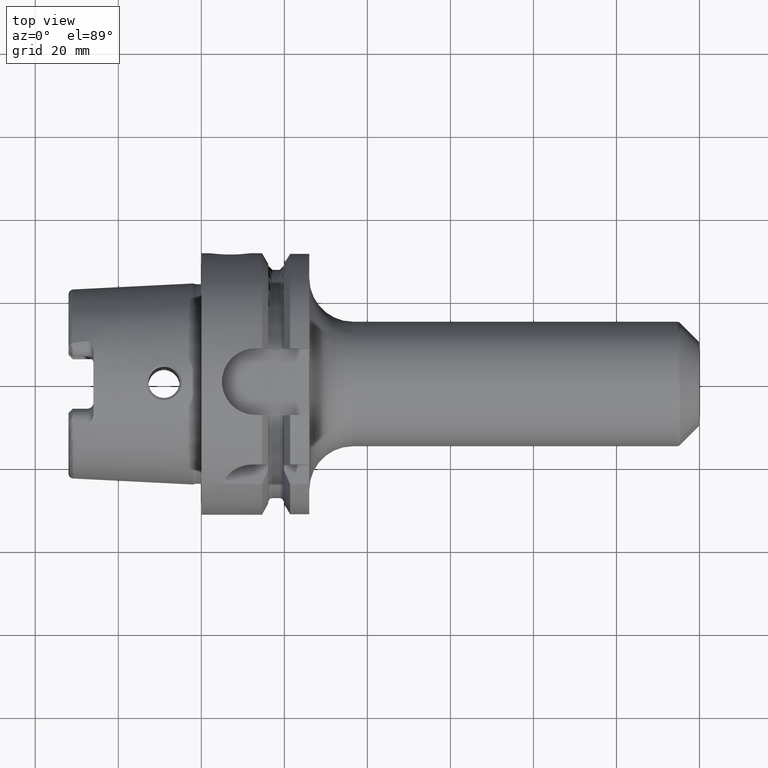
[diagram: clean part render]
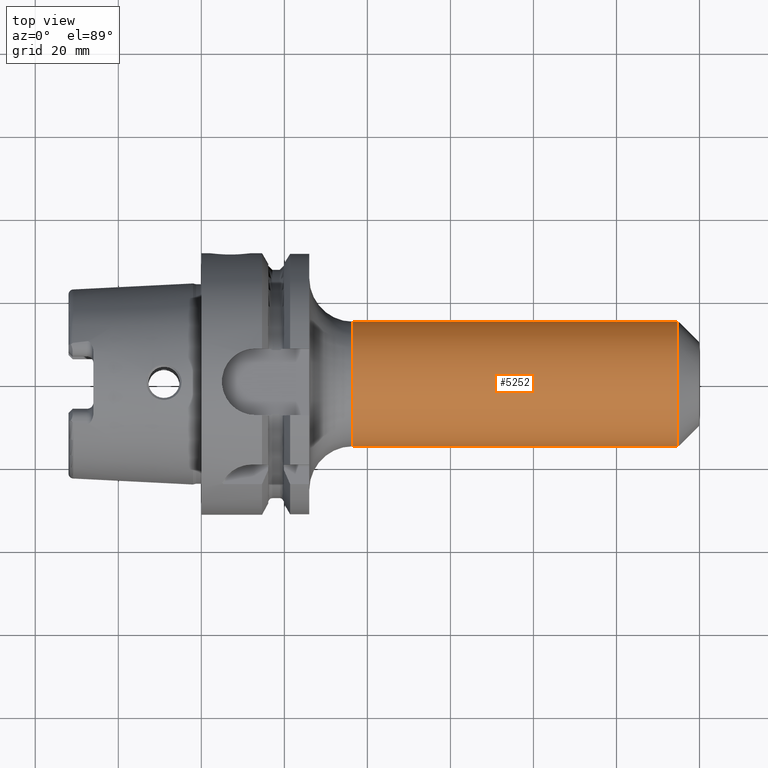
[diagram: same view with one face highlighted and labeled with its STEP entity id]
A machine part, top view. The second image highlights one B-rep face of the part: STEP entity #5252.
In plain terms, the highlighted cylindrical surface (partial cylindrical patch) has radius 15 mm, axis along (1, 0, 0).
Its self-contained STEP definition (entity closure, byte-faithful):
#1966=CARTESIAN_POINT('',(1.145857864376E2,0.E0,0.E0));
#1967=DIRECTION('',(-1.E0,0.E0,0.E0));
#1968=DIRECTION('',(0.E0,-1.E0,0.E0));
#1969=AXIS2_PLACEMENT_3D('',#1966,#1967,#1968);
#1971=CARTESIAN_POINT('',(3.65E1,0.E0,0.E0));
#1972=DIRECTION('',(1.E0,0.E0,0.E0));
#1973=DIRECTION('',(0.E0,1.E0,0.E0));
#1974=AXIS2_PLACEMENT_3D('',#1971,#1972,#1973);
#1991=DIRECTION('',(-1.E0,0.E0,0.E0));
#1992=VECTOR('',#1991,7.808578643763E1);
#1993=CARTESIAN_POINT('',(1.145857864376E2,1.5E1,-2.968259828703E-13));
#1994=LINE('',#1993,#1992);
#2000=DIRECTION('',(-1.E0,0.E0,0.E0));
#2001=VECTOR('',#2000,7.808578643763E1);
#2002=CARTESIAN_POINT('',(1.145857864376E2,-1.5E1,2.961268109865E-13));
#2003=LINE('',#2002,#2001);
#3098=CARTESIAN_POINT('',(3.65E1,-1.5E1,0.E0));
#3099=CARTESIAN_POINT('',(3.65E1,1.5E1,0.E0));
#3100=VERTEX_POINT('',#3098);
#3101=VERTEX_POINT('',#3099);
#3114=CARTESIAN_POINT('',(1.145857864376E2,1.5E1,0.E0));
#3115=CARTESIAN_POINT('',(1.145857864376E2,-1.5E1,0.E0));
#3116=VERTEX_POINT('',#3114);
#3117=VERTEX_POINT('',#3115);
#5238=CARTESIAN_POINT('',(2.13E1,0.E0,0.E0));
#5239=DIRECTION('',(1.E0,0.E0,0.E0));
#5240=DIRECTION('',(0.E0,-1.E0,0.E0));
#5241=AXIS2_PLACEMENT_3D('',#5238,#5239,#5240);
#5242=CYLINDRICAL_SURFACE('',#5241,1.5E1);
#5244=ORIENTED_EDGE('',*,*,#5243,.F.);
#5246=ORIENTED_EDGE('',*,*,#5245,.T.);
#5247=ORIENTED_EDGE('',*,*,#5232,.F.);
#5249=ORIENTED_EDGE('',*,*,#5248,.F.);
#5250=EDGE_LOOP('',(#5244,#5246,#5247,#5249));
#5251=FACE_OUTER_BOUND('',#5250,.F.);
#5252=ADVANCED_FACE('',(#5251),#5242,.T.);
#1970=CIRCLE('',#1969,1.5E1);
#1975=CIRCLE('',#1974,1.5E1);
#5232=EDGE_CURVE('',#3101,#3100,#1975,.T.);
#5243=EDGE_CURVE('',#3117,#3116,#1970,.T.);
#5245=EDGE_CURVE('',#3117,#3100,#2003,.T.);
#5248=EDGE_CURVE('',#3116,#3101,#1994,.T.);